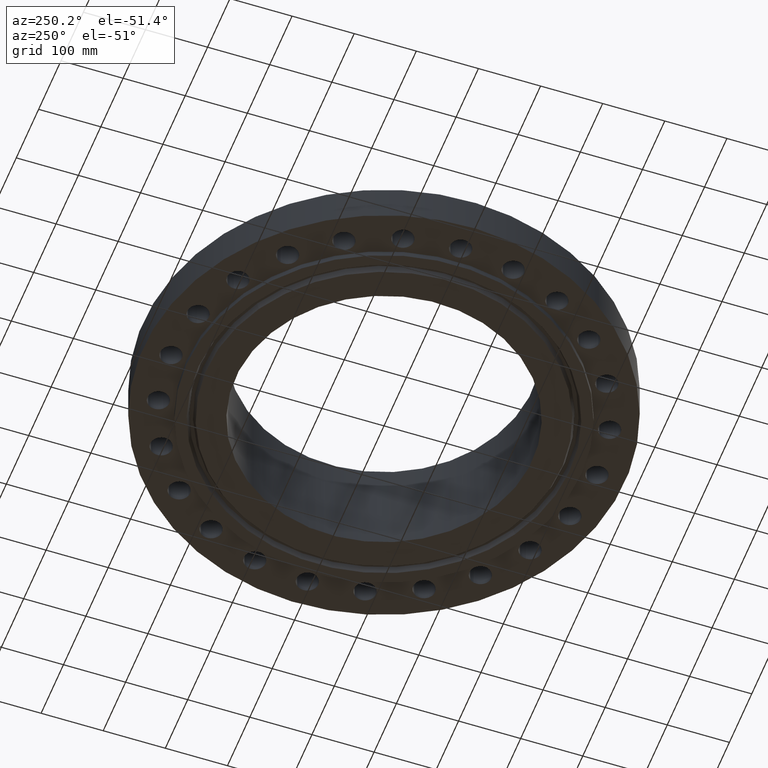
[diagram: clean part render]
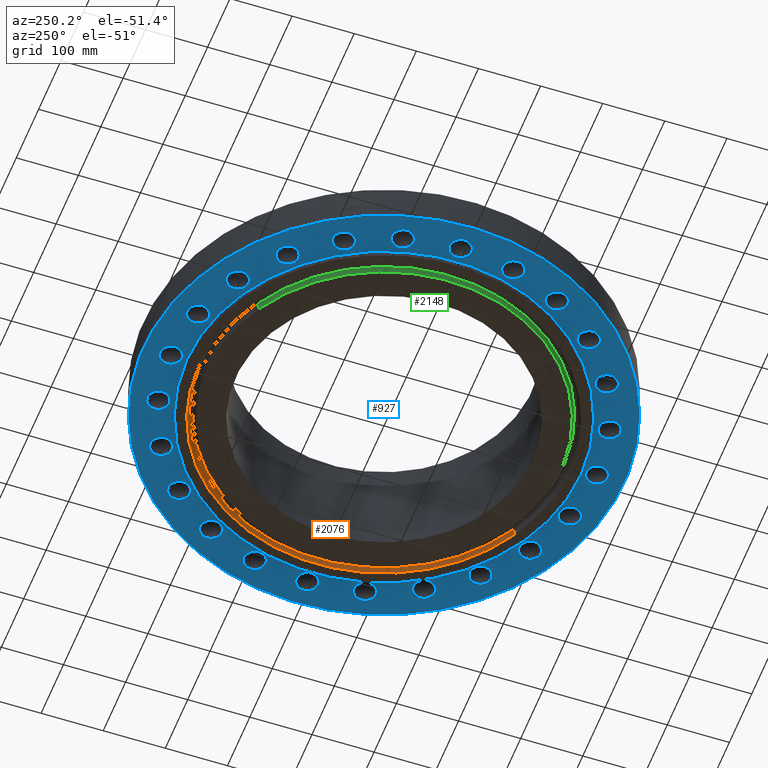
[diagram: same view with three faces highlighted in distinct colors, each labeled with its STEP entity id]
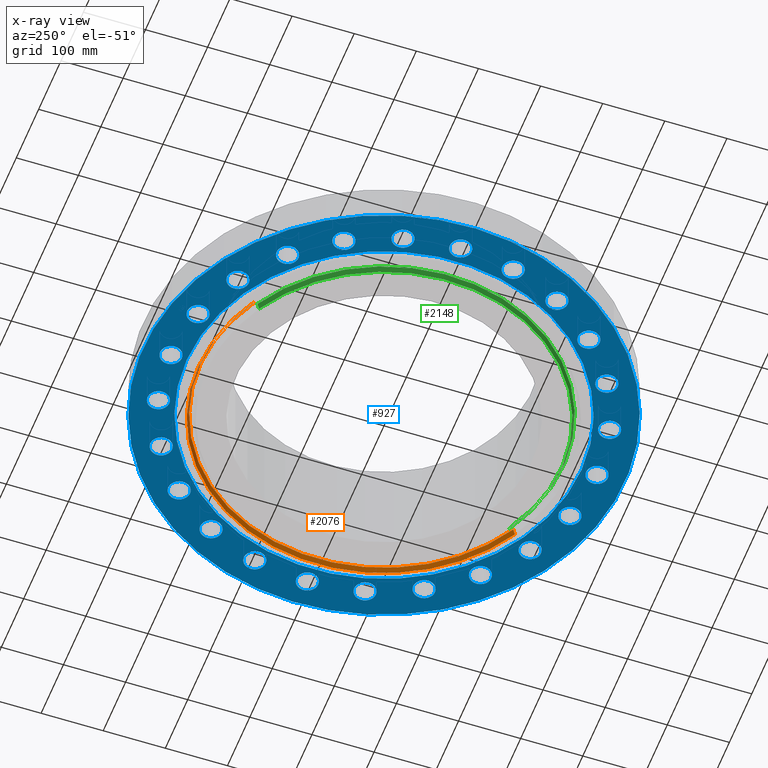
[diagram: x-ray of the same camera — body ghosted, the three highlighted faces saturated]
A machine part, auxiliary view with three faces highlighted in distinct colors.
The next image is the same camera in x-ray (body ghosted, the three faces saturated) — at least one of them is partly hidden behind the body in this view.
Their STEP definitions:

[orange] entity #2076 — the highlighted conical surface has half-angle 23 deg.
#1937=AXIS2_PLACEMENT_3D('Circle Axis2P3D',#1935,#1936,$) ;
#2011=AXIS2_PLACEMENT_3D('Cone Axis2P3D',#2008,#2009,#2010) ;
#2032=AXIS2_PLACEMENT_3D('Circle Axis2P3D',#2030,#2031,$) ;
#1930=CARTESIAN_POINT('Vertex',(5.64068117447,-10.325197632,-0.375000000001)) ;
#1932=CARTESIAN_POINT('Vertex',(-5.64068117447,10.325197632,-0.375000000001)) ;
#1935=CARTESIAN_POINT('Axis2P3D Location',(8.39223703654E-016,-1.1189649382E-015,-0.375000000001)) ;
#1977=CARTESIAN_POINT('Vertex',(-5.57217843689,10.1998042119,-0.0383839389053)) ;
#1979=CARTESIAN_POINT('Vertex',(5.57217843689,-10.1998042119,-0.0383839389053)) ;
#2008=CARTESIAN_POINT('Axis2P3D Location',(0.,0.,-0.0383839389053)) ;
#2013=CARTESIAN_POINT('Line Origine',(-5.60642980568,10.2625009219,-0.206691969453)) ;
#2018=CARTESIAN_POINT('Line Origine',(5.60642980568,-10.2625009219,-0.206691969453)) ;
#2030=CARTESIAN_POINT('Axis2P3D Location',(0.,0.,-0.0383839389053)) ;
#1936=DIRECTION('Axis2P3D Direction',(0.,0.,-0.0393700787402)) ;
#2009=DIRECTION('Axis2P3D Direction',(-0.,-0.,-0.0393700787402)) ;
#2010=DIRECTION('Axis2P3D XDirection',(-0.0188750212049,0.0345504945626,0.)) ;
#2014=DIRECTION('Vector Direction',(-0.00737505833565,0.0134999537303,-0.0362403485611)) ;
#2019=DIRECTION('Vector Direction',(0.00737505833565,-0.0134999537303,-0.0362403485611)) ;
#2031=DIRECTION('Axis2P3D Direction',(0.,0.,0.0393700787402)) ;
#2015=VECTOR('Line Direction',#2014,0.0393700787402) ;
#2020=VECTOR('Line Direction',#2019,0.0393700787402) ;
#2071=ORIENTED_EDGE('',*,*,#1939,.T.) ;
#2072=ORIENTED_EDGE('',*,*,#2022,.T.) ;
#2073=ORIENTED_EDGE('',*,*,#2034,.T.) ;
#2074=ORIENTED_EDGE('',*,*,#2017,.F.) ;
#2076=ADVANCED_FACE('PartBody',(#2075),#2012,.F.) ;
#1938=CIRCLE('generated circle',#1937,11.7655) ;
#2033=CIRCLE('generated circle',#2032,11.6226149594) ;
#2012=CONICAL_SURFACE('Cone',#2011,11.6226149594,0.401425727959) ;
#1939=EDGE_CURVE('',#1933,#1931,#1938,.T.) ;
#2017=EDGE_CURVE('',#1933,#1978,#2016,.F.) ;
#2022=EDGE_CURVE('',#1931,#1980,#2021,.F.) ;
#2034=EDGE_CURVE('',#1980,#1978,#2033,.T.) ;
#2070=EDGE_LOOP('',(#2071,#2072,#2073,#2074)) ;
#2075=FACE_OUTER_BOUND('',#2070,.T.) ;
#2016=LINE('Line',#2013,#2015) ;
#2021=LINE('Line',#2018,#2020) ;
#1931=VERTEX_POINT('',#1930) ;
#1933=VERTEX_POINT('',#1932) ;
#1978=VERTEX_POINT('',#1977) ;
#1980=VERTEX_POINT('',#1979) ;

[blue] entity #927 — the highlighted planar face has unit normal (0, 0, -1).
#51=AXIS2_PLACEMENT_3D('Circle Axis2P3D',#49,#50,$) ;
#85=AXIS2_PLACEMENT_3D('Circle Axis2P3D',#83,#84,$) ;
#114=AXIS2_PLACEMENT_3D('Circle Axis2P3D',#112,#113,$) ;
#149=AXIS2_PLACEMENT_3D('Circle Axis2P3D',#147,#148,$) ;
#462=AXIS2_PLACEMENT_3D('Circle Axis2P3D',#460,#461,$) ;
#486=AXIS2_PLACEMENT_3D('Circle Axis2P3D',#484,#485,$) ;
#499=AXIS2_PLACEMENT_3D('Plane Axis2P3D',#496,#497,#498) ;
#515=AXIS2_PLACEMENT_3D('Circle Axis2P3D',#513,#514,$) ;
#524=AXIS2_PLACEMENT_3D('Circle Axis2P3D',#522,#523,$) ;
#533=AXIS2_PLACEMENT_3D('Circle Axis2P3D',#531,#532,$) ;
#542=AXIS2_PLACEMENT_3D('Circle Axis2P3D',#540,#541,$) ;
#551=AXIS2_PLACEMENT_3D('Circle Axis2P3D',#549,#550,$) ;
#560=AXIS2_PLACEMENT_3D('Circle Axis2P3D',#558,#559,$) ;
#569=AXIS2_PLACEMENT_3D('Circle Axis2P3D',#567,#568,$) ;
#578=AXIS2_PLACEMENT_3D('Circle Axis2P3D',#576,#577,$) ;
#587=AXIS2_PLACEMENT_3D('Circle Axis2P3D',#585,#586,$) ;
#596=AXIS2_PLACEMENT_3D('Circle Axis2P3D',#594,#595,$) ;
#605=AXIS2_PLACEMENT_3D('Circle Axis2P3D',#603,#604,$) ;
#614=AXIS2_PLACEMENT_3D('Circle Axis2P3D',#612,#613,$) ;
#623=AXIS2_PLACEMENT_3D('Circle Axis2P3D',#621,#622,$) ;
#632=AXIS2_PLACEMENT_3D('Circle Axis2P3D',#630,#631,$) ;
#641=AXIS2_PLACEMENT_3D('Circle Axis2P3D',#639,#640,$) ;
#650=AXIS2_PLACEMENT_3D('Circle Axis2P3D',#648,#649,$) ;
#659=AXIS2_PLACEMENT_3D('Circle Axis2P3D',#657,#658,$) ;
#668=AXIS2_PLACEMENT_3D('Circle Axis2P3D',#666,#667,$) ;
#677=AXIS2_PLACEMENT_3D('Circle Axis2P3D',#675,#676,$) ;
#686=AXIS2_PLACEMENT_3D('Circle Axis2P3D',#684,#685,$) ;
#695=AXIS2_PLACEMENT_3D('Circle Axis2P3D',#693,#694,$) ;
#704=AXIS2_PLACEMENT_3D('Circle Axis2P3D',#702,#703,$) ;
#713=AXIS2_PLACEMENT_3D('Circle Axis2P3D',#711,#712,$) ;
#722=AXIS2_PLACEMENT_3D('Circle Axis2P3D',#720,#721,$) ;
#731=AXIS2_PLACEMENT_3D('Circle Axis2P3D',#729,#730,$) ;
#740=AXIS2_PLACEMENT_3D('Circle Axis2P3D',#738,#739,$) ;
#749=AXIS2_PLACEMENT_3D('Circle Axis2P3D',#747,#748,$) ;
#758=AXIS2_PLACEMENT_3D('Circle Axis2P3D',#756,#757,$) ;
#767=AXIS2_PLACEMENT_3D('Circle Axis2P3D',#765,#766,$) ;
#776=AXIS2_PLACEMENT_3D('Circle Axis2P3D',#774,#775,$) ;
#785=AXIS2_PLACEMENT_3D('Circle Axis2P3D',#783,#784,$) ;
#794=AXIS2_PLACEMENT_3D('Circle Axis2P3D',#792,#793,$) ;
#803=AXIS2_PLACEMENT_3D('Circle Axis2P3D',#801,#802,$) ;
#812=AXIS2_PLACEMENT_3D('Circle Axis2P3D',#810,#811,$) ;
#821=AXIS2_PLACEMENT_3D('Circle Axis2P3D',#819,#820,$) ;
#830=AXIS2_PLACEMENT_3D('Circle Axis2P3D',#828,#829,$) ;
#839=AXIS2_PLACEMENT_3D('Circle Axis2P3D',#837,#838,$) ;
#848=AXIS2_PLACEMENT_3D('Circle Axis2P3D',#846,#847,$) ;
#857=AXIS2_PLACEMENT_3D('Circle Axis2P3D',#855,#856,$) ;
#866=AXIS2_PLACEMENT_3D('Circle Axis2P3D',#864,#865,$) ;
#875=AXIS2_PLACEMENT_3D('Circle Axis2P3D',#873,#874,$) ;
#884=AXIS2_PLACEMENT_3D('Circle Axis2P3D',#882,#883,$) ;
#893=AXIS2_PLACEMENT_3D('Circle Axis2P3D',#891,#892,$) ;
#902=AXIS2_PLACEMENT_3D('Circle Axis2P3D',#900,#901,$) ;
#911=AXIS2_PLACEMENT_3D('Circle Axis2P3D',#909,#910,$) ;
#920=AXIS2_PLACEMENT_3D('Circle Axis2P3D',#918,#919,$) ;
#44=CARTESIAN_POINT('Vertex',(-0.605531967707,13.8308036217,2.79741234551E-016)) ;
#49=CARTESIAN_POINT('Axis2P3D Location',(0.,13.5000000001,0.)) ;
#53=CARTESIAN_POINT('Vertex',(0.605531967707,13.1691963784,2.79741234551E-016)) ;
#83=CARTESIAN_POINT('Axis2P3D Location',(0.,13.5000000001,0.)) ;
#112=CARTESIAN_POINT('Axis2P3D Location',(0.,0.,1.67844740731E-015)) ;
#116=CARTESIAN_POINT('Vertex',(-7.31123946374,-13.3831340689,1.67844740731E-015)) ;
#118=CARTESIAN_POINT('Vertex',(7.31123946374,13.3831340689,1.67844740731E-015)) ;
#147=CARTESIAN_POINT('Axis2P3D Location',(0.,0.,1.67844740731E-015)) ;
#457=CARTESIAN_POINT('Vertex',(-5.99281923258,-10.9697820237,1.67844740731E-015)) ;
#460=CARTESIAN_POINT('Axis2P3D Location',(0.,0.,1.67844740731E-015)) ;
#464=CARTESIAN_POINT('Vertex',(5.99281923258,10.9697820237,1.67844740731E-015)) ;
#484=CARTESIAN_POINT('Axis2P3D Location',(0.,0.,1.67844740731E-015)) ;
#496=CARTESIAN_POINT('Axis2P3D Location',(0.,12.5000000001,0.)) ;
#513=CARTESIAN_POINT('Axis2P3D Location',(3.4940571089,13.039998655,0.)) ;
#517=CARTESIAN_POINT('Vertex',(2.99477642012,13.5162536222,0.)) ;
#519=CARTESIAN_POINT('Vertex',(3.99333779768,12.5637436877,2.79741234551E-016)) ;
#522=CARTESIAN_POINT('Axis2P3D Location',(3.4940571089,13.039998655,0.)) ;
#531=CARTESIAN_POINT('Axis2P3D Location',(6.75000000003,11.6913429511,0.)) ;
#535=CARTESIAN_POINT('Vertex',(6.39099574401,12.280593275,0.)) ;
#537=CARTESIAN_POINT('Vertex',(7.10900425605,11.1020926273,2.79741234551E-016)) ;
#540=CARTESIAN_POINT('Axis2P3D Location',(6.75000000003,11.6913429511,0.)) ;
#549=CARTESIAN_POINT('Axis2P3D Location',(9.54594154606,9.54594154606,0.)) ;
#553=CARTESIAN_POINT('Vertex',(9.35167926957,10.2080307907,0.)) ;
#555=CARTESIAN_POINT('Vertex',(9.74020382255,8.88385230136,2.79741234551E-016)) ;
#558=CARTESIAN_POINT('Axis2P3D Location',(9.54594154606,9.54594154606,0.)) ;
#567=CARTESIAN_POINT('Axis2P3D Location',(11.6913429511,6.75000000003,0.)) ;
#571=CARTESIAN_POINT('Vertex',(11.6750613073,7.43980787768,0.)) ;
#573=CARTESIAN_POINT('Vertex',(11.707624595,6.06019212237,2.79741234551E-016)) ;
#576=CARTESIAN_POINT('Axis2P3D Location',(11.6913429511,6.75000000003,0.)) ;
#585=CARTESIAN_POINT('Axis2P3D Location',(13.039998655,3.4940571089,0.)) ;
#589=CARTESIAN_POINT('Vertex',(13.2028072109,4.16457435262,0.)) ;
#591=CARTESIAN_POINT('Vertex',(12.877190099,2.82353986518,2.79741234551E-016)) ;
#594=CARTESIAN_POINT('Axis2P3D Location',(13.039998655,3.4940571089,0.)) ;
#603=CARTESIAN_POINT('Axis2P3D Location',(13.5000000001,-2.23792987641E-015,0.)) ;
#607=CARTESIAN_POINT('Vertex',(13.8308036217,0.605531967707,0.)) ;
#609=CARTESIAN_POINT('Vertex',(13.1691963784,-0.605531967707,2.79741234551E-016)) ;
#612=CARTESIAN_POINT('Axis2P3D Location',(13.5000000001,-2.23792987641E-015,0.)) ;
#621=CARTESIAN_POINT('Axis2P3D Location',(13.039998655,-3.4940571089,0.)) ;
#625=CARTESIAN_POINT('Vertex',(13.5162536222,-2.99477642012,0.)) ;
#627=CARTESIAN_POINT('Vertex',(12.5637436877,-3.99333779768,-8.39223703654E-016)) ;
#630=CARTESIAN_POINT('Axis2P3D Location',(13.039998655,-3.4940571089,0.)) ;
#639=CARTESIAN_POINT('Axis2P3D Location',(11.6913429511,-6.75000000003,0.)) ;
#643=CARTESIAN_POINT('Vertex',(12.280593275,-6.39099574401,0.)) ;
#645=CARTESIAN_POINT('Vertex',(11.1020926273,-7.10900425605,-1.95818864186E-015)) ;
#648=CARTESIAN_POINT('Axis2P3D Location',(11.6913429511,-6.75000000003,0.)) ;
#657=CARTESIAN_POINT('Axis2P3D Location',(9.54594154606,-9.54594154606,0.)) ;
#661=CARTESIAN_POINT('Vertex',(10.2080307907,-9.35167926957,0.)) ;
#663=CARTESIAN_POINT('Vertex',(8.88385230136,-9.74020382255,2.79741234551E-016)) ;
#666=CARTESIAN_POINT('Axis2P3D Location',(9.54594154606,-9.54594154606,0.)) ;
#675=CARTESIAN_POINT('Axis2P3D Location',(6.75000000003,-11.6913429511,0.)) ;
#679=CARTESIAN_POINT('Vertex',(7.43980787768,-11.6750613073,0.)) ;
#681=CARTESIAN_POINT('Vertex',(6.06019212237,-11.707624595,2.79741234551E-016)) ;
#684=CARTESIAN_POINT('Axis2P3D Location',(6.75000000003,-11.6913429511,0.)) ;
#693=CARTESIAN_POINT('Axis2P3D Location',(3.4940571089,-13.039998655,0.)) ;
#697=CARTESIAN_POINT('Vertex',(4.16457435262,-13.2028072109,0.)) ;
#699=CARTESIAN_POINT('Vertex',(2.82353986518,-12.877190099,2.79741234551E-016)) ;
#702=CARTESIAN_POINT('Axis2P3D Location',(3.4940571089,-13.039998655,0.)) ;
#711=CARTESIAN_POINT('Axis2P3D Location',(1.25883555548E-015,-13.5000000001,0.)) ;
#715=CARTESIAN_POINT('Vertex',(0.605531967707,-13.8308036217,0.)) ;
#717=CARTESIAN_POINT('Vertex',(-0.605531967707,-13.1691963784,2.79741234551E-016)) ;
#720=CARTESIAN_POINT('Axis2P3D Location',(4.54579506146E-016,-13.5000000001,0.)) ;
#729=CARTESIAN_POINT('Axis2P3D Location',(-3.4940571089,-13.039998655,0.)) ;
#733=CARTESIAN_POINT('Vertex',(-2.99477642012,-13.5162536222,0.)) ;
#735=CARTESIAN_POINT('Vertex',(-3.99333779768,-12.5637436877,2.79741234551E-016)) ;
#738=CARTESIAN_POINT('Axis2P3D Location',(-3.4940571089,-13.039998655,0.)) ;
#747=CARTESIAN_POINT('Axis2P3D Location',(-6.75000000003,-11.6913429511,0.)) ;
#751=CARTESIAN_POINT('Vertex',(-6.39099574401,-12.280593275,0.)) ;
#753=CARTESIAN_POINT('Vertex',(-7.10900425605,-11.1020926273,2.79741234551E-016)) ;
#756=CARTESIAN_POINT('Axis2P3D Location',(-6.75000000003,-11.6913429511,0.)) ;
#765=CARTESIAN_POINT('Axis2P3D Location',(-9.54594154606,-9.54594154606,0.)) ;
#769=CARTESIAN_POINT('Vertex',(-9.35167926957,-10.2080307907,0.)) ;
#771=CARTESIAN_POINT('Vertex',(-9.74020382255,-8.88385230136,2.79741234551E-016)) ;
#774=CARTESIAN_POINT('Axis2P3D Location',(-9.54594154606,-9.54594154606,0.)) ;
#783=CARTESIAN_POINT('Axis2P3D Location',(-11.6913429511,-6.75000000003,0.)) ;
#787=CARTESIAN_POINT('Vertex',(-11.6750613073,-7.43980787768,0.)) ;
#789=CARTESIAN_POINT('Vertex',(-11.707624595,-6.06019212237,2.79741234551E-016)) ;
#792=CARTESIAN_POINT('Axis2P3D Location',(-11.6913429511,-6.75000000003,0.)) ;
#801=CARTESIAN_POINT('Axis2P3D Location',(-13.039998655,-3.4940571089,0.)) ;
#805=CARTESIAN_POINT('Vertex',(-13.2028072109,-4.16457435262,0.)) ;
#807=CARTESIAN_POINT('Vertex',(-12.877190099,-2.82353986518,2.79741234551E-016)) ;
#810=CARTESIAN_POINT('Axis2P3D Location',(-13.039998655,-3.4940571089,0.)) ;
#819=CARTESIAN_POINT('Axis2P3D Location',(-13.5000000001,-2.23792987641E-015,0.)) ;
#823=CARTESIAN_POINT('Vertex',(-13.8308036217,-0.605531967707,0.)) ;
#825=CARTESIAN_POINT('Vertex',(-13.1691963784,0.605531967707,2.79741234551E-016)) ;
#828=CARTESIAN_POINT('Axis2P3D Location',(-13.5000000001,-2.23792987641E-015,0.)) ;
#837=CARTESIAN_POINT('Axis2P3D Location',(-13.039998655,3.4940571089,0.)) ;
#841=CARTESIAN_POINT('Vertex',(-13.5162536222,2.99477642012,0.)) ;
#843=CARTESIAN_POINT('Vertex',(-12.5637436877,3.99333779768,2.79741234551E-016)) ;
#846=CARTESIAN_POINT('Axis2P3D Location',(-13.039998655,3.4940571089,0.)) ;
#855=CARTESIAN_POINT('Axis2P3D Location',(-11.6913429511,6.75000000003,0.)) ;
#859=CARTESIAN_POINT('Vertex',(-12.280593275,6.39099574401,0.)) ;
#861=CARTESIAN_POINT('Vertex',(-11.1020926273,7.10900425605,2.79741234551E-016)) ;
#864=CARTESIAN_POINT('Axis2P3D Location',(-11.6913429511,6.75000000003,0.)) ;
#873=CARTESIAN_POINT('Axis2P3D Location',(-9.54594154606,9.54594154606,0.)) ;
#877=CARTESIAN_POINT('Vertex',(-10.2080307907,9.35167926957,0.)) ;
#879=CARTESIAN_POINT('Vertex',(-8.88385230136,9.74020382255,2.79741234551E-016)) ;
#882=CARTESIAN_POINT('Axis2P3D Location',(-9.54594154606,9.54594154606,0.)) ;
#891=CARTESIAN_POINT('Axis2P3D Location',(-6.75000000003,11.6913429511,0.)) ;
#895=CARTESIAN_POINT('Vertex',(-7.43980787768,11.6750613073,0.)) ;
#897=CARTESIAN_POINT('Vertex',(-6.06019212237,11.707624595,2.79741234551E-016)) ;
#900=CARTESIAN_POINT('Axis2P3D Location',(-6.75000000003,11.6913429511,0.)) ;
#909=CARTESIAN_POINT('Axis2P3D Location',(-3.4940571089,13.039998655,0.)) ;
#913=CARTESIAN_POINT('Vertex',(-4.16457435262,13.2028072109,0.)) ;
#915=CARTESIAN_POINT('Vertex',(-2.82353986518,12.877190099,2.79741234551E-016)) ;
#918=CARTESIAN_POINT('Axis2P3D Location',(-3.4940571089,13.039998655,0.)) ;
#50=DIRECTION('Axis2P3D Direction',(0.,-0.,-0.0393700787402)) ;
#84=DIRECTION('Axis2P3D Direction',(0.,-0.,-0.0393700787402)) ;
#113=DIRECTION('Axis2P3D Direction',(0.,0.,-0.0393700787402)) ;
#148=DIRECTION('Axis2P3D Direction',(0.,0.,-0.0393700787402)) ;
#461=DIRECTION('Axis2P3D Direction',(0.,0.,-0.0393700787402)) ;
#485=DIRECTION('Axis2P3D Direction',(0.,0.,-0.0393700787402)) ;
#497=DIRECTION('Axis2P3D Direction',(0.,0.,-0.0393700787402)) ;
#498=DIRECTION('Axis2P3D XDirection',(0.0393700787402,0.,0.)) ;
#514=DIRECTION('Axis2P3D Direction',(0.,0.,-0.0393700787402)) ;
#523=DIRECTION('Axis2P3D Direction',(0.,0.,-0.0393700787402)) ;
#532=DIRECTION('Axis2P3D Direction',(0.,0.,-0.0393700787402)) ;
#541=DIRECTION('Axis2P3D Direction',(0.,0.,-0.0393700787402)) ;
#550=DIRECTION('Axis2P3D Direction',(0.,0.,-0.0393700787402)) ;
#559=DIRECTION('Axis2P3D Direction',(0.,0.,-0.0393700787402)) ;
#568=DIRECTION('Axis2P3D Direction',(0.,0.,-0.0393700787402)) ;
#577=DIRECTION('Axis2P3D Direction',(0.,0.,-0.0393700787402)) ;
#586=DIRECTION('Axis2P3D Direction',(0.,0.,-0.0393700787402)) ;
#595=DIRECTION('Axis2P3D Direction',(0.,0.,-0.0393700787402)) ;
#604=DIRECTION('Axis2P3D Direction',(0.,0.,-0.0393700787402)) ;
#613=DIRECTION('Axis2P3D Direction',(0.,0.,-0.0393700787402)) ;
#622=DIRECTION('Axis2P3D Direction',(0.,0.,-0.0393700787402)) ;
#631=DIRECTION('Axis2P3D Direction',(0.,0.,-0.0393700787402)) ;
#640=DIRECTION('Axis2P3D Direction',(0.,0.,-0.0393700787402)) ;
#649=DIRECTION('Axis2P3D Direction',(0.,0.,-0.0393700787402)) ;
#658=DIRECTION('Axis2P3D Direction',(0.,0.,-0.0393700787402)) ;
#667=DIRECTION('Axis2P3D Direction',(0.,0.,-0.0393700787402)) ;
#676=DIRECTION('Axis2P3D Direction',(0.,0.,-0.0393700787402)) ;
#685=DIRECTION('Axis2P3D Direction',(0.,0.,-0.0393700787402)) ;
#694=DIRECTION('Axis2P3D Direction',(0.,0.,-0.0393700787402)) ;
#703=DIRECTION('Axis2P3D Direction',(0.,0.,-0.0393700787402)) ;
#712=DIRECTION('Axis2P3D Direction',(0.,0.,-0.0393700787402)) ;
#721=DIRECTION('Axis2P3D Direction',(0.,0.,-0.0393700787402)) ;
#730=DIRECTION('Axis2P3D Direction',(0.,0.,-0.0393700787402)) ;
#739=DIRECTION('Axis2P3D Direction',(0.,0.,-0.0393700787402)) ;
#748=DIRECTION('Axis2P3D Direction',(0.,0.,-0.0393700787402)) ;
#757=DIRECTION('Axis2P3D Direction',(0.,0.,-0.0393700787402)) ;
#766=DIRECTION('Axis2P3D Direction',(0.,0.,-0.0393700787402)) ;
#775=DIRECTION('Axis2P3D Direction',(0.,0.,-0.0393700787402)) ;
#784=DIRECTION('Axis2P3D Direction',(0.,0.,-0.0393700787402)) ;
#793=DIRECTION('Axis2P3D Direction',(0.,0.,-0.0393700787402)) ;
#802=DIRECTION('Axis2P3D Direction',(0.,0.,-0.0393700787402)) ;
#811=DIRECTION('Axis2P3D Direction',(0.,0.,-0.0393700787402)) ;
#820=DIRECTION('Axis2P3D Direction',(0.,0.,-0.0393700787402)) ;
#829=DIRECTION('Axis2P3D Direction',(0.,0.,-0.0393700787402)) ;
#838=DIRECTION('Axis2P3D Direction',(0.,0.,-0.0393700787402)) ;
#847=DIRECTION('Axis2P3D Direction',(0.,0.,-0.0393700787402)) ;
#856=DIRECTION('Axis2P3D Direction',(0.,0.,-0.0393700787402)) ;
#865=DIRECTION('Axis2P3D Direction',(0.,0.,-0.0393700787402)) ;
#874=DIRECTION('Axis2P3D Direction',(0.,0.,-0.0393700787402)) ;
#883=DIRECTION('Axis2P3D Direction',(0.,0.,-0.0393700787402)) ;
#892=DIRECTION('Axis2P3D Direction',(0.,0.,-0.0393700787402)) ;
#901=DIRECTION('Axis2P3D Direction',(0.,0.,-0.0393700787402)) ;
#910=DIRECTION('Axis2P3D Direction',(0.,0.,-0.0393700787402)) ;
#919=DIRECTION('Axis2P3D Direction',(0.,0.,-0.0393700787402)) ;
#502=ORIENTED_EDGE('',*,*,#120,.T.) ;
#503=ORIENTED_EDGE('',*,*,#151,.T.) ;
#506=ORIENTED_EDGE('',*,*,#87,.F.) ;
#507=ORIENTED_EDGE('',*,*,#55,.F.) ;
#510=ORIENTED_EDGE('',*,*,#488,.F.) ;
#511=ORIENTED_EDGE('',*,*,#466,.F.) ;
#528=ORIENTED_EDGE('',*,*,#521,.F.) ;
#529=ORIENTED_EDGE('',*,*,#526,.F.) ;
#546=ORIENTED_EDGE('',*,*,#539,.F.) ;
#547=ORIENTED_EDGE('',*,*,#544,.F.) ;
#564=ORIENTED_EDGE('',*,*,#557,.F.) ;
#565=ORIENTED_EDGE('',*,*,#562,.F.) ;
#582=ORIENTED_EDGE('',*,*,#575,.F.) ;
#583=ORIENTED_EDGE('',*,*,#580,.F.) ;
#600=ORIENTED_EDGE('',*,*,#593,.F.) ;
#601=ORIENTED_EDGE('',*,*,#598,.F.) ;
#618=ORIENTED_EDGE('',*,*,#611,.F.) ;
#619=ORIENTED_EDGE('',*,*,#616,.F.) ;
#636=ORIENTED_EDGE('',*,*,#629,.F.) ;
#637=ORIENTED_EDGE('',*,*,#634,.F.) ;
#654=ORIENTED_EDGE('',*,*,#647,.F.) ;
#655=ORIENTED_EDGE('',*,*,#652,.F.) ;
#672=ORIENTED_EDGE('',*,*,#665,.F.) ;
#673=ORIENTED_EDGE('',*,*,#670,.F.) ;
#690=ORIENTED_EDGE('',*,*,#683,.F.) ;
#691=ORIENTED_EDGE('',*,*,#688,.F.) ;
#708=ORIENTED_EDGE('',*,*,#701,.F.) ;
#709=ORIENTED_EDGE('',*,*,#706,.F.) ;
#726=ORIENTED_EDGE('',*,*,#719,.F.) ;
#727=ORIENTED_EDGE('',*,*,#724,.F.) ;
#744=ORIENTED_EDGE('',*,*,#737,.F.) ;
#745=ORIENTED_EDGE('',*,*,#742,.F.) ;
#762=ORIENTED_EDGE('',*,*,#755,.F.) ;
#763=ORIENTED_EDGE('',*,*,#760,.F.) ;
#780=ORIENTED_EDGE('',*,*,#773,.F.) ;
#781=ORIENTED_EDGE('',*,*,#778,.F.) ;
#798=ORIENTED_EDGE('',*,*,#791,.F.) ;
#799=ORIENTED_EDGE('',*,*,#796,.F.) ;
#816=ORIENTED_EDGE('',*,*,#809,.F.) ;
#817=ORIENTED_EDGE('',*,*,#814,.F.) ;
#834=ORIENTED_EDGE('',*,*,#827,.F.) ;
#835=ORIENTED_EDGE('',*,*,#832,.F.) ;
#852=ORIENTED_EDGE('',*,*,#845,.F.) ;
#853=ORIENTED_EDGE('',*,*,#850,.F.) ;
#870=ORIENTED_EDGE('',*,*,#863,.F.) ;
#871=ORIENTED_EDGE('',*,*,#868,.F.) ;
#888=ORIENTED_EDGE('',*,*,#881,.F.) ;
#889=ORIENTED_EDGE('',*,*,#886,.F.) ;
#906=ORIENTED_EDGE('',*,*,#899,.F.) ;
#907=ORIENTED_EDGE('',*,*,#904,.F.) ;
#924=ORIENTED_EDGE('',*,*,#917,.F.) ;
#925=ORIENTED_EDGE('',*,*,#922,.F.) ;
#508=FACE_BOUND('',#505,.T.) ;
#512=FACE_BOUND('',#509,.T.) ;
#530=FACE_BOUND('',#527,.T.) ;
#548=FACE_BOUND('',#545,.T.) ;
#566=FACE_BOUND('',#563,.T.) ;
#584=FACE_BOUND('',#581,.T.) ;
#602=FACE_BOUND('',#599,.T.) ;
#620=FACE_BOUND('',#617,.T.) ;
#638=FACE_BOUND('',#635,.T.) ;
#656=FACE_BOUND('',#653,.T.) ;
#674=FACE_BOUND('',#671,.T.) ;
#692=FACE_BOUND('',#689,.T.) ;
#710=FACE_BOUND('',#707,.T.) ;
#728=FACE_BOUND('',#725,.T.) ;
#746=FACE_BOUND('',#743,.T.) ;
#764=FACE_BOUND('',#761,.T.) ;
#782=FACE_BOUND('',#779,.T.) ;
#800=FACE_BOUND('',#797,.T.) ;
#818=FACE_BOUND('',#815,.T.) ;
#836=FACE_BOUND('',#833,.T.) ;
#854=FACE_BOUND('',#851,.T.) ;
#872=FACE_BOUND('',#869,.T.) ;
#890=FACE_BOUND('',#887,.T.) ;
#908=FACE_BOUND('',#905,.T.) ;
#926=FACE_BOUND('',#923,.T.) ;
#927=ADVANCED_FACE('PartBody',(#504,#508,#512,#530,#548,#566,#584,#602,#620,#638,#656,#674,#692,#710,#728,#746,#764,#782,#800,#818,#836,#854,#872,#890,#908,#926),#500,.T.) ;
#52=CIRCLE('generated circle',#51,0.690000000003) ;
#86=CIRCLE('generated circle',#85,0.690000000003) ;
#115=CIRCLE('generated circle',#114,15.2500000001) ;
#150=CIRCLE('generated circle',#149,15.2500000001) ;
#463=CIRCLE('generated circle',#462,12.5000000001) ;
#487=CIRCLE('generated circle',#486,12.5000000001) ;
#516=CIRCLE('generated circle',#515,0.690000000003) ;
#525=CIRCLE('generated circle',#524,0.690000000003) ;
#534=CIRCLE('generated circle',#533,0.690000000003) ;
#543=CIRCLE('generated circle',#542,0.690000000003) ;
#552=CIRCLE('generated circle',#551,0.690000000003) ;
#561=CIRCLE('generated circle',#560,0.690000000003) ;
#570=CIRCLE('generated circle',#569,0.690000000003) ;
#579=CIRCLE('generated circle',#578,0.690000000003) ;
#588=CIRCLE('generated circle',#587,0.690000000003) ;
#597=CIRCLE('generated circle',#596,0.690000000003) ;
#606=CIRCLE('generated circle',#605,0.690000000003) ;
#615=CIRCLE('generated circle',#614,0.690000000003) ;
#624=CIRCLE('generated circle',#623,0.690000000003) ;
#633=CIRCLE('generated circle',#632,0.690000000003) ;
#642=CIRCLE('generated circle',#641,0.690000000003) ;
#651=CIRCLE('generated circle',#650,0.690000000003) ;
#660=CIRCLE('generated circle',#659,0.690000000003) ;
#669=CIRCLE('generated circle',#668,0.690000000003) ;
#678=CIRCLE('generated circle',#677,0.690000000003) ;
#687=CIRCLE('generated circle',#686,0.690000000003) ;
#696=CIRCLE('generated circle',#695,0.690000000003) ;
#705=CIRCLE('generated circle',#704,0.690000000003) ;
#714=CIRCLE('generated circle',#713,0.690000000003) ;
#723=CIRCLE('generated circle',#722,0.690000000003) ;
#732=CIRCLE('generated circle',#731,0.690000000003) ;
#741=CIRCLE('generated circle',#740,0.690000000003) ;
#750=CIRCLE('generated circle',#749,0.690000000003) ;
#759=CIRCLE('generated circle',#758,0.690000000003) ;
#768=CIRCLE('generated circle',#767,0.690000000003) ;
#777=CIRCLE('generated circle',#776,0.690000000003) ;
#786=CIRCLE('generated circle',#785,0.690000000003) ;
#795=CIRCLE('generated circle',#794,0.690000000003) ;
#804=CIRCLE('generated circle',#803,0.690000000003) ;
#813=CIRCLE('generated circle',#812,0.690000000003) ;
#822=CIRCLE('generated circle',#821,0.690000000003) ;
#831=CIRCLE('generated circle',#830,0.690000000003) ;
#840=CIRCLE('generated circle',#839,0.690000000003) ;
#849=CIRCLE('generated circle',#848,0.690000000003) ;
#858=CIRCLE('generated circle',#857,0.690000000003) ;
#867=CIRCLE('generated circle',#866,0.690000000003) ;
#876=CIRCLE('generated circle',#875,0.690000000003) ;
#885=CIRCLE('generated circle',#884,0.690000000003) ;
#894=CIRCLE('generated circle',#893,0.690000000003) ;
#903=CIRCLE('generated circle',#902,0.690000000003) ;
#912=CIRCLE('generated circle',#911,0.690000000003) ;
#921=CIRCLE('generated circle',#920,0.690000000003) ;
#55=EDGE_CURVE('',#45,#54,#52,.T.) ;
#87=EDGE_CURVE('',#54,#45,#86,.T.) ;
#120=EDGE_CURVE('',#117,#119,#115,.T.) ;
#151=EDGE_CURVE('',#119,#117,#150,.T.) ;
#466=EDGE_CURVE('',#458,#465,#463,.T.) ;
#488=EDGE_CURVE('',#465,#458,#487,.T.) ;
#521=EDGE_CURVE('',#518,#520,#516,.T.) ;
#526=EDGE_CURVE('',#520,#518,#525,.T.) ;
#539=EDGE_CURVE('',#536,#538,#534,.T.) ;
#544=EDGE_CURVE('',#538,#536,#543,.T.) ;
#557=EDGE_CURVE('',#554,#556,#552,.T.) ;
#562=EDGE_CURVE('',#556,#554,#561,.T.) ;
#575=EDGE_CURVE('',#572,#574,#570,.T.) ;
#580=EDGE_CURVE('',#574,#572,#579,.T.) ;
#593=EDGE_CURVE('',#590,#592,#588,.T.) ;
#598=EDGE_CURVE('',#592,#590,#597,.T.) ;
#611=EDGE_CURVE('',#608,#610,#606,.T.) ;
#616=EDGE_CURVE('',#610,#608,#615,.T.) ;
#629=EDGE_CURVE('',#626,#628,#624,.T.) ;
#634=EDGE_CURVE('',#628,#626,#633,.T.) ;
#647=EDGE_CURVE('',#644,#646,#642,.T.) ;
#652=EDGE_CURVE('',#646,#644,#651,.T.) ;
#665=EDGE_CURVE('',#662,#664,#660,.T.) ;
#670=EDGE_CURVE('',#664,#662,#669,.T.) ;
#683=EDGE_CURVE('',#680,#682,#678,.T.) ;
#688=EDGE_CURVE('',#682,#680,#687,.T.) ;
#701=EDGE_CURVE('',#698,#700,#696,.T.) ;
#706=EDGE_CURVE('',#700,#698,#705,.T.) ;
#719=EDGE_CURVE('',#716,#718,#714,.T.) ;
#724=EDGE_CURVE('',#718,#716,#723,.T.) ;
#737=EDGE_CURVE('',#734,#736,#732,.T.) ;
#742=EDGE_CURVE('',#736,#734,#741,.T.) ;
#755=EDGE_CURVE('',#752,#754,#750,.T.) ;
#760=EDGE_CURVE('',#754,#752,#759,.T.) ;
#773=EDGE_CURVE('',#770,#772,#768,.T.) ;
#778=EDGE_CURVE('',#772,#770,#777,.T.) ;
#791=EDGE_CURVE('',#788,#790,#786,.T.) ;
#796=EDGE_CURVE('',#790,#788,#795,.T.) ;
#809=EDGE_CURVE('',#806,#808,#804,.T.) ;
#814=EDGE_CURVE('',#808,#806,#813,.T.) ;
#827=EDGE_CURVE('',#824,#826,#822,.T.) ;
#832=EDGE_CURVE('',#826,#824,#831,.T.) ;
#845=EDGE_CURVE('',#842,#844,#840,.T.) ;
#850=EDGE_CURVE('',#844,#842,#849,.T.) ;
#863=EDGE_CURVE('',#860,#862,#858,.T.) ;
#868=EDGE_CURVE('',#862,#860,#867,.T.) ;
#881=EDGE_CURVE('',#878,#880,#876,.T.) ;
#886=EDGE_CURVE('',#880,#878,#885,.T.) ;
#899=EDGE_CURVE('',#896,#898,#894,.T.) ;
#904=EDGE_CURVE('',#898,#896,#903,.T.) ;
#917=EDGE_CURVE('',#914,#916,#912,.T.) ;
#922=EDGE_CURVE('',#916,#914,#921,.T.) ;
#501=EDGE_LOOP('',(#502,#503)) ;
#505=EDGE_LOOP('',(#506,#507)) ;
#509=EDGE_LOOP('',(#510,#511)) ;
#527=EDGE_LOOP('',(#528,#529)) ;
#545=EDGE_LOOP('',(#546,#547)) ;
#563=EDGE_LOOP('',(#564,#565)) ;
#581=EDGE_LOOP('',(#582,#583)) ;
#599=EDGE_LOOP('',(#600,#601)) ;
#617=EDGE_LOOP('',(#618,#619)) ;
#635=EDGE_LOOP('',(#636,#637)) ;
#653=EDGE_LOOP('',(#654,#655)) ;
#671=EDGE_LOOP('',(#672,#673)) ;
#689=EDGE_LOOP('',(#690,#691)) ;
#707=EDGE_LOOP('',(#708,#709)) ;
#725=EDGE_LOOP('',(#726,#727)) ;
#743=EDGE_LOOP('',(#744,#745)) ;
#761=EDGE_LOOP('',(#762,#763)) ;
#779=EDGE_LOOP('',(#780,#781)) ;
#797=EDGE_LOOP('',(#798,#799)) ;
#815=EDGE_LOOP('',(#816,#817)) ;
#833=EDGE_LOOP('',(#834,#835)) ;
#851=EDGE_LOOP('',(#852,#853)) ;
#869=EDGE_LOOP('',(#870,#871)) ;
#887=EDGE_LOOP('',(#888,#889)) ;
#905=EDGE_LOOP('',(#906,#907)) ;
#923=EDGE_LOOP('',(#924,#925)) ;
#504=FACE_OUTER_BOUND('',#501,.T.) ;
#500=PLANE('',#499) ;
#45=VERTEX_POINT('',#44) ;
#54=VERTEX_POINT('',#53) ;
#117=VERTEX_POINT('',#116) ;
#119=VERTEX_POINT('',#118) ;
#458=VERTEX_POINT('',#457) ;
#465=VERTEX_POINT('',#464) ;
#518=VERTEX_POINT('',#517) ;
#520=VERTEX_POINT('',#519) ;
#536=VERTEX_POINT('',#535) ;
#538=VERTEX_POINT('',#537) ;
#554=VERTEX_POINT('',#553) ;
#556=VERTEX_POINT('',#555) ;
#572=VERTEX_POINT('',#571) ;
#574=VERTEX_POINT('',#573) ;
#590=VERTEX_POINT('',#589) ;
#592=VERTEX_POINT('',#591) ;
#608=VERTEX_POINT('',#607) ;
#610=VERTEX_POINT('',#609) ;
#626=VERTEX_POINT('',#625) ;
#628=VERTEX_POINT('',#627) ;
#644=VERTEX_POINT('',#643) ;
#646=VERTEX_POINT('',#645) ;
#662=VERTEX_POINT('',#661) ;
#664=VERTEX_POINT('',#663) ;
#680=VERTEX_POINT('',#679) ;
#682=VERTEX_POINT('',#681) ;
#698=VERTEX_POINT('',#697) ;
#700=VERTEX_POINT('',#699) ;
#716=VERTEX_POINT('',#715) ;
#718=VERTEX_POINT('',#717) ;
#734=VERTEX_POINT('',#733) ;
#736=VERTEX_POINT('',#735) ;
#752=VERTEX_POINT('',#751) ;
#754=VERTEX_POINT('',#753) ;
#770=VERTEX_POINT('',#769) ;
#772=VERTEX_POINT('',#771) ;
#788=VERTEX_POINT('',#787) ;
#790=VERTEX_POINT('',#789) ;
#806=VERTEX_POINT('',#805) ;
#808=VERTEX_POINT('',#807) ;
#824=VERTEX_POINT('',#823) ;
#826=VERTEX_POINT('',#825) ;
#842=VERTEX_POINT('',#841) ;
#844=VERTEX_POINT('',#843) ;
#860=VERTEX_POINT('',#859) ;
#862=VERTEX_POINT('',#861) ;
#878=VERTEX_POINT('',#877) ;
#880=VERTEX_POINT('',#879) ;
#896=VERTEX_POINT('',#895) ;
#898=VERTEX_POINT('',#897) ;
#914=VERTEX_POINT('',#913) ;
#916=VERTEX_POINT('',#915) ;

[green] entity #2148 — the highlighted conical surface has half-angle 23 deg.
#1956=AXIS2_PLACEMENT_3D('Circle Axis2P3D',#1954,#1955,$) ;
#2110=AXIS2_PLACEMENT_3D('Circle Axis2P3D',#2108,#2109,$) ;
#2123=AXIS2_PLACEMENT_3D('Cone Axis2P3D',#2120,#2121,#2122) ;
#1949=CARTESIAN_POINT('Vertex',(-5.38610621347,9.8592012916,-0.375000000001)) ;
#1951=CARTESIAN_POINT('Vertex',(5.38610621347,-9.8592012916,-0.375000000001)) ;
#1954=CARTESIAN_POINT('Axis2P3D Location',(0.,1.1189649382E-015,-0.375000000001)) ;
#2086=CARTESIAN_POINT('Vertex',(5.45460895105,-9.98459471164,-0.0383839389053)) ;
#2093=CARTESIAN_POINT('Vertex',(-5.45460895105,9.98459471164,-0.0383839389053)) ;
#2108=CARTESIAN_POINT('Axis2P3D Location',(0.,0.,-0.0383839389053)) ;
#2120=CARTESIAN_POINT('Axis2P3D Location',(0.,0.,-0.435000000002)) ;
#2125=CARTESIAN_POINT('Line Origine',(-5.42035758226,9.92189800162,-0.206691969453)) ;
#2130=CARTESIAN_POINT('Line Origine',(5.42035758226,-9.92189800162,-0.206691969453)) ;
#1955=DIRECTION('Axis2P3D Direction',(0.,0.,-0.0393700787402)) ;
#2109=DIRECTION('Axis2P3D Direction',(0.,0.,0.0393700787402)) ;
#2121=DIRECTION('Axis2P3D Direction',(0.,0.,0.0393700787402)) ;
#2122=DIRECTION('Axis2P3D XDirection',(-0.0188750212049,0.0345504945626,0.)) ;
#2126=DIRECTION('Vector Direction',(-0.00737505833565,0.0134999537303,0.0362403485611)) ;
#2131=DIRECTION('Vector Direction',(0.00737505833565,-0.0134999537303,0.0362403485611)) ;
#2127=VECTOR('Line Direction',#2126,0.0393700787402) ;
#2132=VECTOR('Line Direction',#2131,0.0393700787402) ;
#2143=ORIENTED_EDGE('',*,*,#2134,.F.) ;
#2144=ORIENTED_EDGE('',*,*,#2112,.F.) ;
#2145=ORIENTED_EDGE('',*,*,#2129,.T.) ;
#2146=ORIENTED_EDGE('',*,*,#1958,.F.) ;
#2148=ADVANCED_FACE('PartBody',(#2147),#2124,.T.) ;
#1957=CIRCLE('generated circle',#1956,11.2345) ;
#2111=CIRCLE('generated circle',#2110,11.3773850407) ;
#2124=CONICAL_SURFACE('Cone',#2123,11.2090315111,0.401425727959) ;
#1958=EDGE_CURVE('',#1952,#1950,#1957,.T.) ;
#2112=EDGE_CURVE('',#2094,#2087,#2111,.T.) ;
#2129=EDGE_CURVE('',#2094,#1950,#2128,.F.) ;
#2134=EDGE_CURVE('',#2087,#1952,#2133,.F.) ;
#2142=EDGE_LOOP('',(#2143,#2144,#2145,#2146)) ;
#2147=FACE_OUTER_BOUND('',#2142,.T.) ;
#2128=LINE('Line',#2125,#2127) ;
#2133=LINE('Line',#2130,#2132) ;
#1950=VERTEX_POINT('',#1949) ;
#1952=VERTEX_POINT('',#1951) ;
#2087=VERTEX_POINT('',#2086) ;
#2094=VERTEX_POINT('',#2093) ;